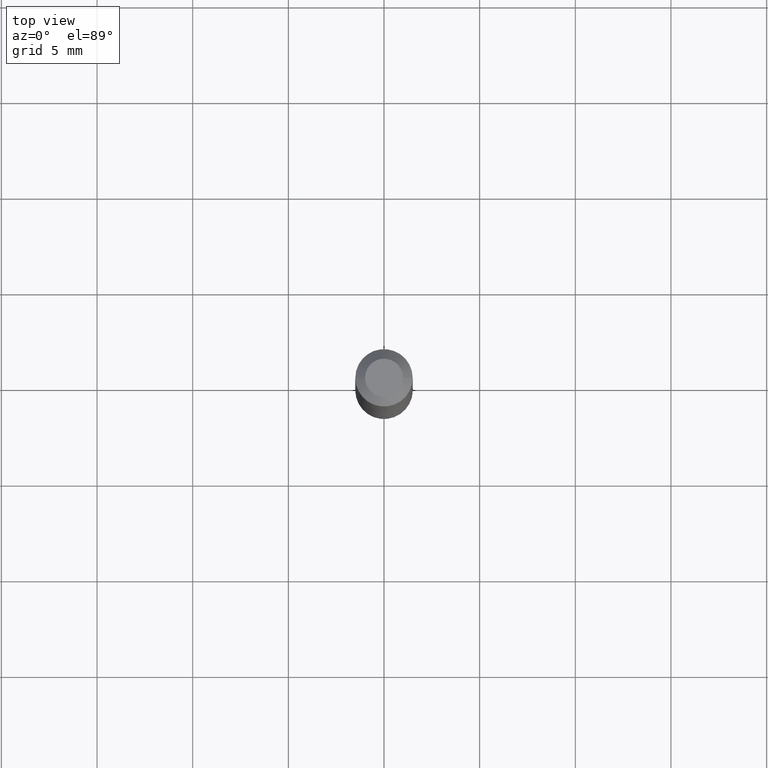
[diagram: clean part render]
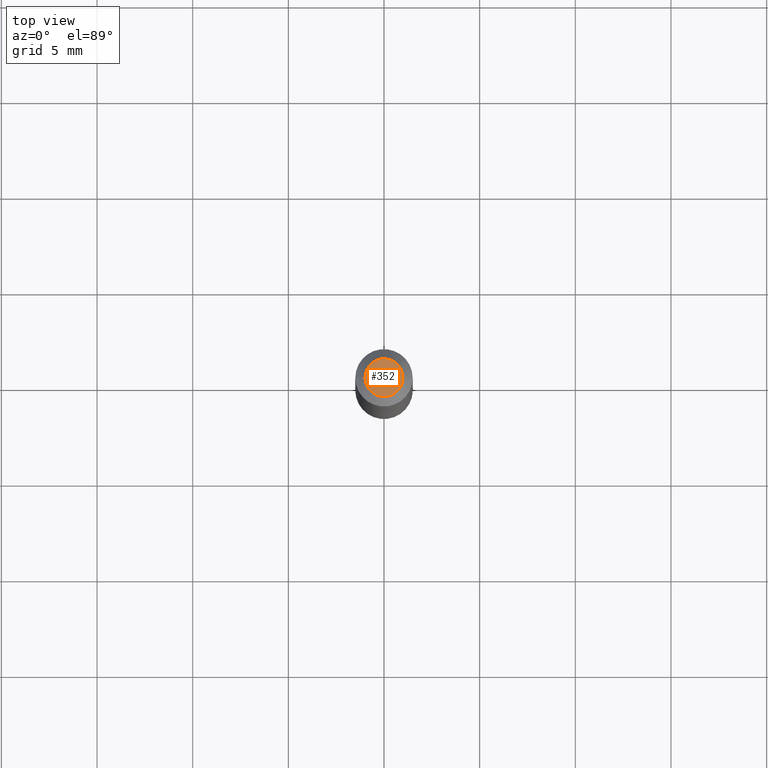
[diagram: same view with one face highlighted and labeled with its STEP entity id]
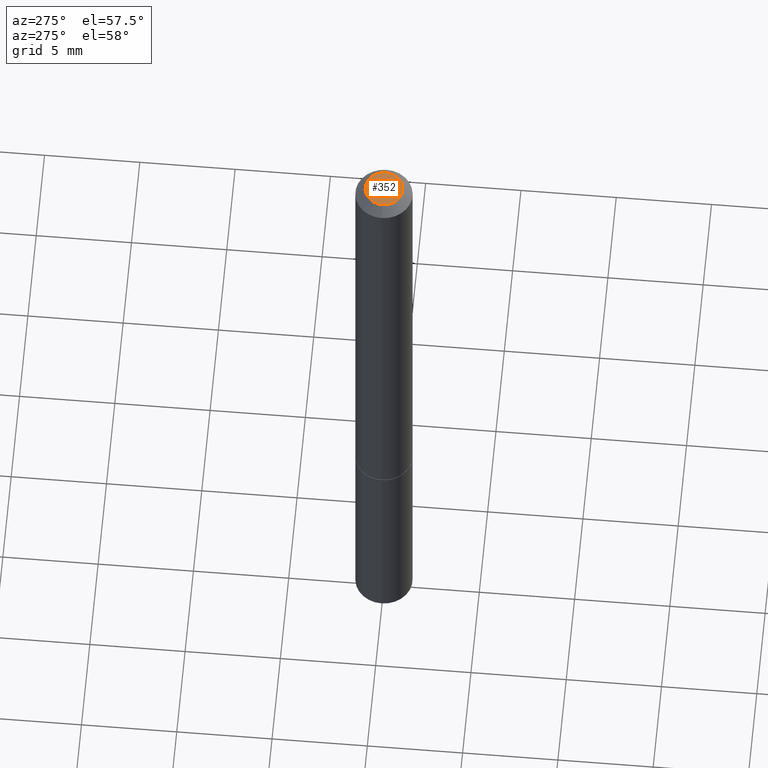
[diagram: same view with one face highlighted and labeled with its STEP entity id]
A machine part, top view. The second image highlights one B-rep face of the part: STEP entity #352.
A second angle (auxiliary view) of the same face is appended — the face is thin or edge-on in the first view.
In plain terms, the highlighted planar face has unit normal (0, -0, -1).
Its self-contained STEP definition (entity closure, byte-faithful):
#13 = CARTESIAN_POINT ( 'NONE',  ( 0.03904999999999982097, -3.714222401791240519E-16, -5.549066237130309406E-17 ) ) ;
#15 = CARTESIAN_POINT ( 'NONE',  ( 1.357006838635785746E-45, -1.937446121494581442E-31, -5.549066237130534971E-17 ) ) ;
#27 = CARTESIAN_POINT ( 'NONE',  ( 1.357006838635785746E-45, -1.937446121494581442E-31, -5.549066237130534971E-17 ) ) ;
#33 = ORIENTED_EDGE ( 'NONE', *, *, #85, .T. ) ;
#36 = CIRCLE ( 'NONE', #235, 0.03904999999999982097 ) ;
#80 = CIRCLE ( 'NONE', #268, 0.03904999999999982097 ) ;
#85 = EDGE_CURVE ( 'NONE', #170, #88, #80, .T. ) ;
#88 = VERTEX_POINT ( 'NONE', #13 ) ;
#94 = EDGE_LOOP ( 'NONE', ( #33, #364 ) ) ;
#107 = FACE_OUTER_BOUND ( 'NONE', #94, .T. ) ;
#134 = PLANE ( 'NONE',  #346 ) ;
#155 = DIRECTION ( 'NONE',  ( 1.000000000000000000, -6.982962677686265922E-15, 4.873707401586885104E-29 ) ) ;
#167 = DIRECTION ( 'NONE',  ( -1.000000000000000000, 6.982962677686265922E-15, -4.876176775795935793E-29 ) ) ;
#170 = VERTEX_POINT ( 'NONE', #182 ) ;
#182 = CARTESIAN_POINT ( 'NONE',  ( -0.03904999999999982097, 3.075995059520783951E-16, -5.549066237130737733E-17 ) ) ;
#199 = CARTESIAN_POINT ( 'NONE',  ( 2.726846925636474363E-16, 0.03904999999999982097, -1.640876774674768860E-16 ) ) ;
#235 = AXIS2_PLACEMENT_3D ( 'NONE', #27, #341, #336 ) ;
#268 = AXIS2_PLACEMENT_3D ( 'NONE', #15, #357, #155 ) ;
#310 = DIRECTION ( 'NONE',  ( 2.438088387897960049E-29, -3.491481338843145188E-15, -1.000000000000000000 ) ) ;
#336 = DIRECTION ( 'NONE',  ( 1.000000000000000000, -6.982962677686265922E-15, 4.873707401586885104E-29 ) ) ;
#339 = EDGE_CURVE ( 'NONE', #88, #170, #36, .T. ) ;
#341 = DIRECTION ( 'NONE',  ( -2.445468806185136597E-29, 3.491481338843145583E-15, 1.000000000000000000 ) ) ;
#346 = AXIS2_PLACEMENT_3D ( 'NONE', #199, #310, #167 ) ;
#352 = ADVANCED_FACE ( 'NONE', ( #107 ), #134, .F. ) ;
#357 = DIRECTION ( 'NONE',  ( -2.445468806185136597E-29, 3.491481338843145583E-15, 1.000000000000000000 ) ) ;
#364 = ORIENTED_EDGE ( 'NONE', *, *, #339, .T. ) ;